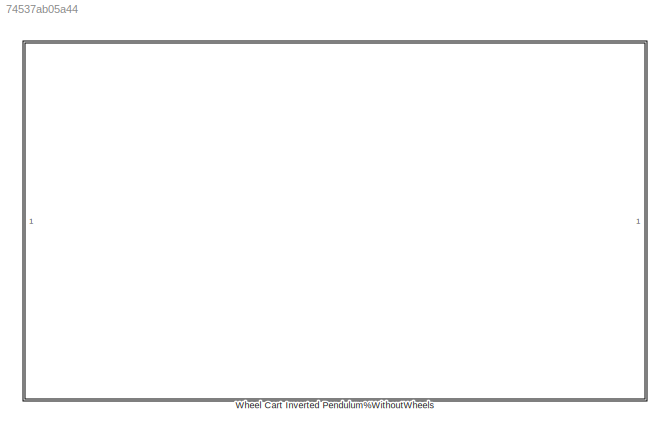
MODEL slx_74537ab05a44
KIND model
CONFIG AbsTol = auto
CONFIG EnableMultiTasking = off
CONFIG FixedStep = auto
CONFIG MaxStep = auto
CONFIG MinStep = auto
CONFIG RelTol = 1e-3
CONFIG SampleTimeConstraint = Unconstrained
CONFIG SolverName = VariableStepAuto
CONFIG StartTime = 0.0
CONFIG StopTime = 10.0
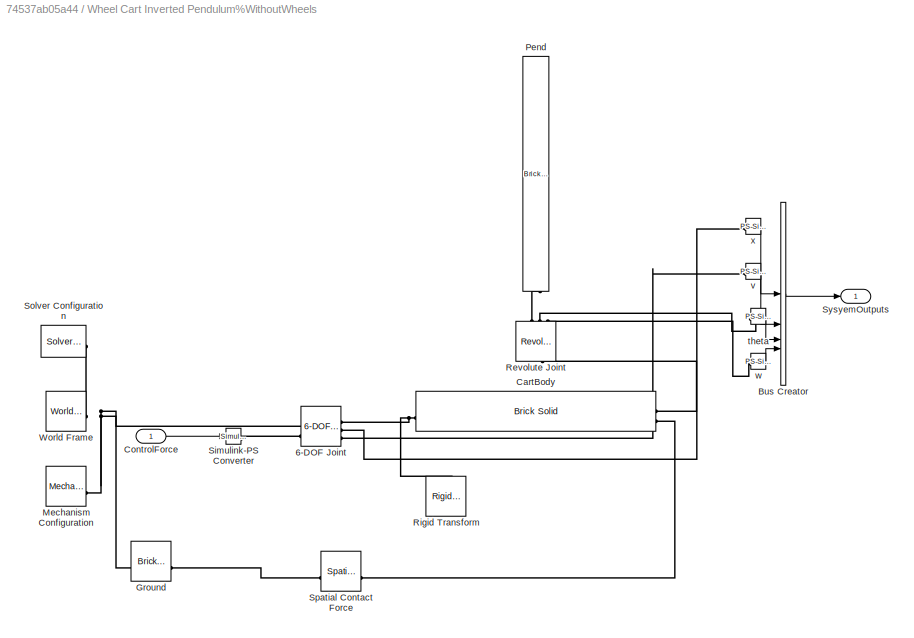
BLOCK [SubSystem] Wheel Cart Inverted Pendulum%WithoutWheels
  Commented = on
BLOCK [Outport] Wheel Cart Inverted Pendulum%WithoutWheels/ SysyemOutputs
BLOCK [Reference] Wheel Cart Inverted Pendulum%WithoutWheels/6-DOF Joint  REF=sm_lib/Joints/6-DOF Joint
  SourceBlock = sm_lib/Joints/6-DOF Joint
  SourceType = 6-DOF Joint
BLOCK [BusCreator] Wheel Cart Inverted Pendulum%WithoutWheels/Bus Creator
  DisplayOption = bar
  InheritFromInputs = on
  Inputs = 4
BLOCK [Reference] Wheel Cart Inverted Pendulum%WithoutWheels/CartBody  REF=sm_lib/Body Elements/Brick Solid
  NameLocation = top
  SourceBlock = sm_lib/Body Elements/Brick Solid
  SourceType = Brick Solid
BLOCK [Inport] Wheel Cart Inverted Pendulum%WithoutWheels/ControlForce
BLOCK [Reference] Wheel Cart Inverted Pendulum%WithoutWheels/Ground  REF=sm_lib/Body Elements/Brick Solid
  NameLocation = top
  SourceBlock = sm_lib/Body Elements/Brick Solid
  SourceType = Brick Solid
BLOCK [Reference] Wheel Cart Inverted Pendulum%WithoutWheels/Mechanism Configuration  REF=sm_lib/Utilities/Mechanism
Configuration
  SourceBlock = sm_lib/Utilities/Mechanism\nConfiguration
  SourceType = Mechanism\nConfiguration
BLOCK [Reference] Wheel Cart Inverted Pendulum%WithoutWheels/Pend  REF=sm_lib/Body Elements/Brick Solid
  NameLocation = right
  SourceBlock = sm_lib/Body Elements/Brick Solid
  SourceType = Brick Solid
BLOCK [Reference] Wheel Cart Inverted Pendulum%WithoutWheels/Revolute Joint  REF=sm_lib/Joints/Revolute Joint
  NameLocation = right
  SourceBlock = sm_lib/Joints/Revolute Joint
  SourceType = Revolute Joint
BLOCK [Reference] Wheel Cart Inverted Pendulum%WithoutWheels/Rigid Transform  REF=sm_lib/Frames and
Transforms/Rigid
Transform
  NameLocation = left
  SourceBlock = sm_lib/Frames and\nTransforms/Rigid\nTransform
  SourceType = Rigid\nTransform
BLOCK [Reference] Wheel Cart Inverted Pendulum%WithoutWheels/Simulink-PS Converter  REF=nesl_utility/Simulink-PS
Converter
  SourceBlock = nesl_utility/Simulink-PS\nConverter
  SourceType = Simulink-PS\nConverter
BLOCK [Reference] Wheel Cart Inverted Pendulum%WithoutWheels/Solver Configuration  REF=nesl_utility/Solver
Configuration
  SourceBlock = nesl_utility/Solver\nConfiguration
  SourceType = Solver\nConfiguration
BLOCK [Reference] Wheel Cart Inverted Pendulum%WithoutWheels/Spatial Contact Force  REF=sm_lib/Forces and
Torques/Spatial
Contact Force
  SourceBlock = sm_lib/Forces and\nTorques/Spatial\nContact Force
  SourceType = Spatial\nContact Force
BLOCK [Reference] Wheel Cart Inverted Pendulum%WithoutWheels/World Frame  REF=sm_lib/Frames and
Transforms/World Frame
  SourceBlock = sm_lib/Frames and\nTransforms/World Frame
  SourceType = World Frame
BLOCK [Reference] Wheel Cart Inverted Pendulum%WithoutWheels/theta  REF=nesl_utility/PS-Simulink
Converter
  SourceBlock = nesl_utility/PS-Simulink\nConverter
  SourceType = PS-Simulink\nConverter
BLOCK [Reference] Wheel Cart Inverted Pendulum%WithoutWheels/v  REF=nesl_utility/PS-Simulink
Converter
  SourceBlock = nesl_utility/PS-Simulink\nConverter
  SourceType = PS-Simulink\nConverter
BLOCK [Reference] Wheel Cart Inverted Pendulum%WithoutWheels/w  REF=nesl_utility/PS-Simulink
Converter
  SourceBlock = nesl_utility/PS-Simulink\nConverter
  SourceType = PS-Simulink\nConverter
BLOCK [Reference] Wheel Cart Inverted Pendulum%WithoutWheels/x  REF=nesl_utility/PS-Simulink
Converter
  SourceBlock = nesl_utility/PS-Simulink\nConverter
  SourceType = PS-Simulink\nConverter
LINE Wheel Cart Inverted Pendulum%WithoutWheels/Bus Creator:1 -> Wheel Cart Inverted Pendulum%WithoutWheels/ SysyemOutputs:1
LINE Wheel Cart Inverted Pendulum%WithoutWheels/ControlForce:1 -> Wheel Cart Inverted Pendulum%WithoutWheels/Simulink-PS Converter:1
LINE Wheel Cart Inverted Pendulum%WithoutWheels/theta:1 -> Wheel Cart Inverted Pendulum%WithoutWheels/Bus Creator:3
LINE Wheel Cart Inverted Pendulum%WithoutWheels/v:1 -> Wheel Cart Inverted Pendulum%WithoutWheels/Bus Creator:2
LINE Wheel Cart Inverted Pendulum%WithoutWheels/w:1 -> Wheel Cart Inverted Pendulum%WithoutWheels/Bus Creator:4
LINE Wheel Cart Inverted Pendulum%WithoutWheels/x:1 -> Wheel Cart Inverted Pendulum%WithoutWheels/Bus Creator:1
PNET net1: Wheel Cart Inverted Pendulum%WithoutWheels/6-DOF Joint:LConn1 -- Wheel Cart Inverted Pendulum%WithoutWheels/Ground:RConn1 -- Wheel Cart Inverted Pendulum%WithoutWheels/Mechanism Configuration:RConn1 -- Wheel Cart Inverted Pendulum%WithoutWheels/Solver Configuration:RConn1 -- Wheel Cart Inverted Pendulum%WithoutWheels/World Frame:RConn1
PLINE Wheel Cart Inverted Pendulum%WithoutWheels/6-DOF Joint:LConn2 -- Wheel Cart Inverted Pendulum%WithoutWheels/Simulink-PS Converter:RConn1
PNET net2: Wheel Cart Inverted Pendulum%WithoutWheels/6-DOF Joint:RConn1 -- Wheel Cart Inverted Pendulum%WithoutWheels/CartBody:RConn1 -- Wheel Cart Inverted Pendulum%WithoutWheels/Rigid Transform:LConn1
PLINE Wheel Cart Inverted Pendulum%WithoutWheels/6-DOF Joint:RConn2 -- Wheel Cart Inverted Pendulum%WithoutWheels/x:LConn1
PLINE Wheel Cart Inverted Pendulum%WithoutWheels/6-DOF Joint:RConn3 -- Wheel Cart Inverted Pendulum%WithoutWheels/v:LConn1
PLINE Wheel Cart Inverted Pendulum%WithoutWheels/CartBody:LConn1 -- Wheel Cart Inverted Pendulum%WithoutWheels/Revolute Joint:LConn1
PLINE Wheel Cart Inverted Pendulum%WithoutWheels/CartBody:LConn2 -- Wheel Cart Inverted Pendulum%WithoutWheels/Spatial Contact Force:RConn1
PLINE Wheel Cart Inverted Pendulum%WithoutWheels/Ground:LConn1 -- Wheel Cart Inverted Pendulum%WithoutWheels/Spatial Contact Force:LConn1
PLINE Wheel Cart Inverted Pendulum%WithoutWheels/Pend:LConn1 -- Wheel Cart Inverted Pendulum%WithoutWheels/Revolute Joint:RConn1
PLINE Wheel Cart Inverted Pendulum%WithoutWheels/Revolute Joint:RConn2 -- Wheel Cart Inverted Pendulum%WithoutWheels/theta:LConn1
PLINE Wheel Cart Inverted Pendulum%WithoutWheels/Revolute Joint:RConn3 -- Wheel Cart Inverted Pendulum%WithoutWheels/w:LConn1
note: PNET lines group multi-terminal physical nets as a canonical sorted terminal list (undirected conserving connections); 2-terminal nets keep the pairwise PLINE form
